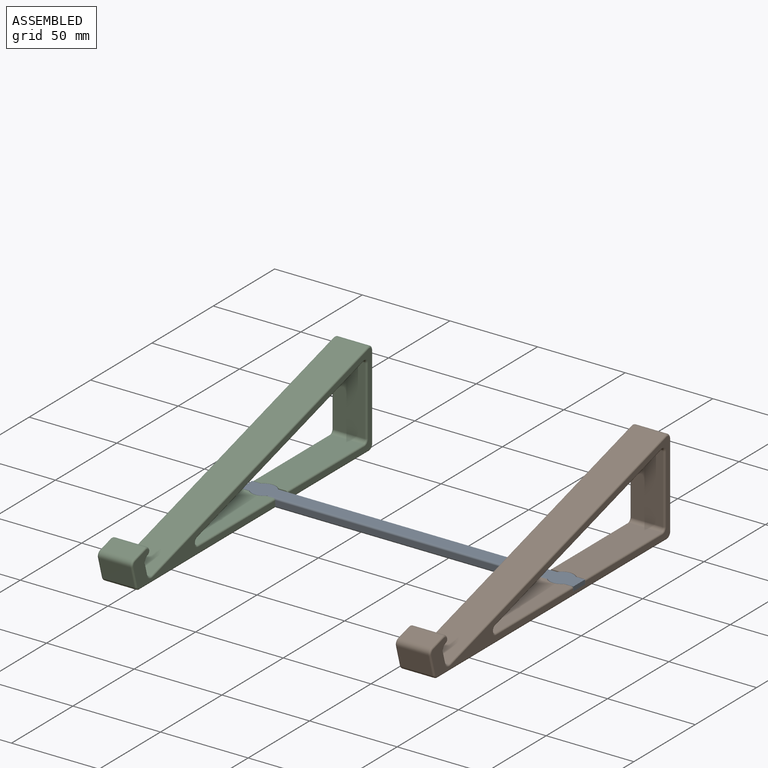
[diagram: assembled view]
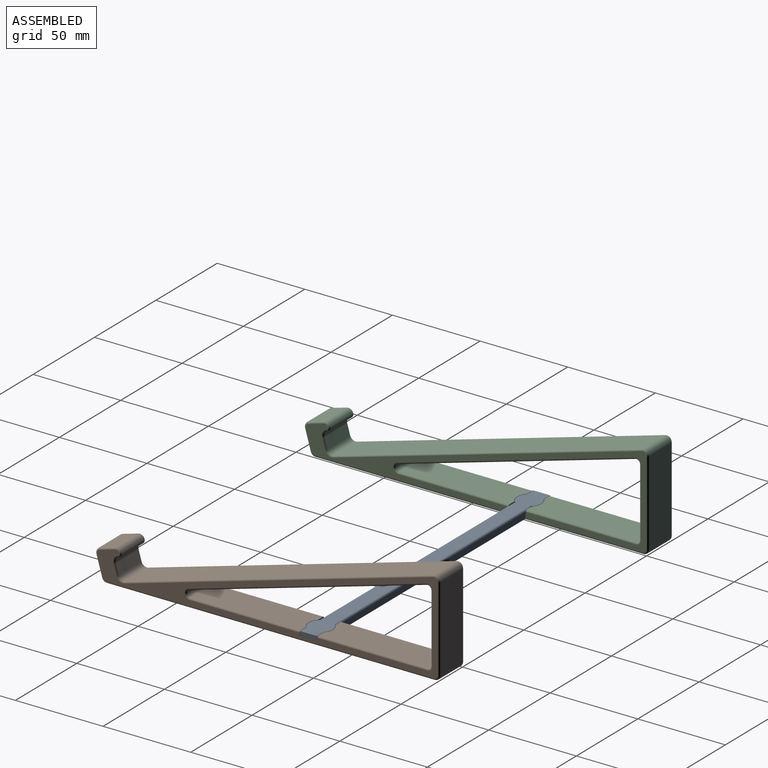
[diagram: assembled view, second angle]
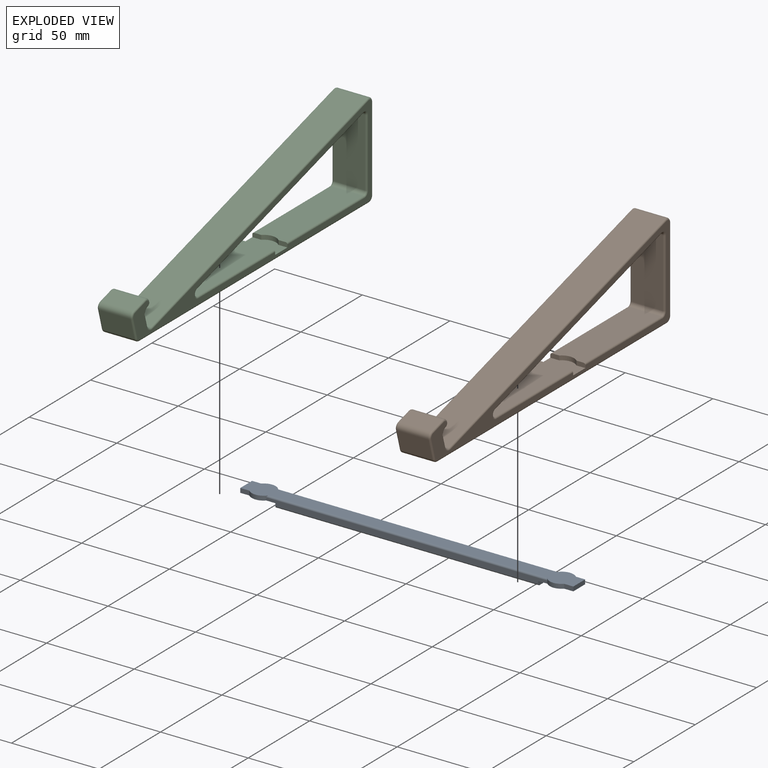
[diagram: exploded view]
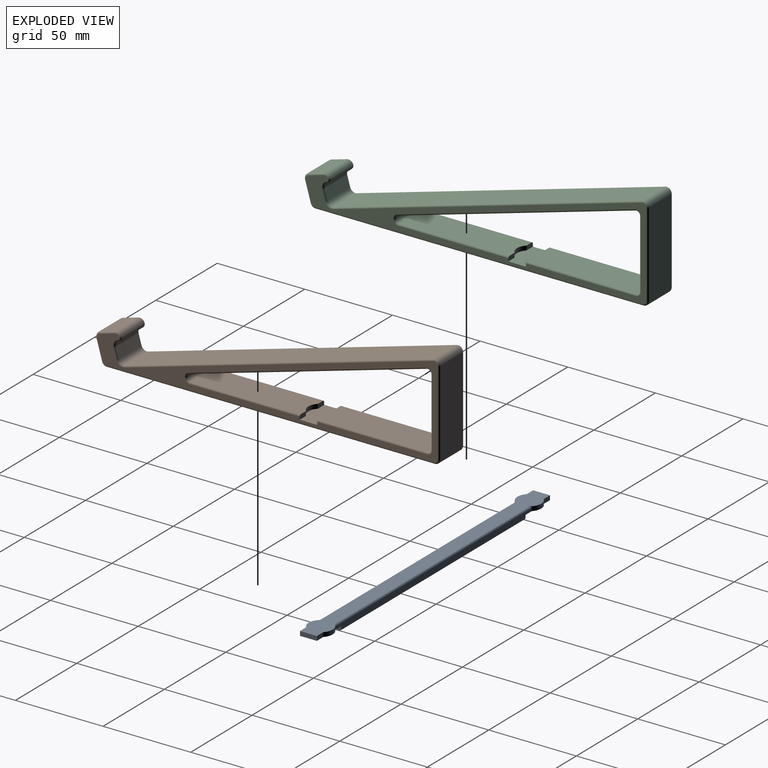
[diagram: exploded view, second angle]
ASSEMBLY  parts=3 mates=2
PART A: 22 faces, bbox 190x13.6x5 mm
  f0: plane 160.37x3mm, normal (0,1,0), area 465.6mm2, adj f1,f3,f6,f11,f16,f17,f19,f21
  f1: plane 9.6x2.5mm, normal (-1,0,0), area 23.6mm2, adj f0,f2,f4,f11,f20,f21
  f2: plane 160.37x3mm, normal (0,-1,0), area 465.6mm2, adj f1,f3,f10,f11,f12,f17,f18,f20
  f3: plane 9.6x2.5mm, normal (1,0,0), area 23.6mm2, adj f0,f2,f4,f17,f20,f21
  f4: plane 150x7.6mm, normal (0,0,1), area 1140mm2, adj f1,f3,f20,f21
  f5: plane 190x13.6mm, normal (0,0,-1), area 1558.1mm2, adj f6,f7,f8,f9,f10,f12,f13,f14
  f6: cylinder r=6.8mm len=10.46mm, axis (0,0,-1), area 27.1mm2, adj f0,f5,f7,f11,f19
  f7: plane 5.18x2.5mm, normal (0,1,0), area 13mm2, adj f5,f6,f8,f11
  f8: plane 9.6x2.5mm, normal (-1,0,0), area 24mm2, adj f5,f7,f9,f11
  f9: plane 5.18x2.5mm, normal (0,-1,0), area 13mm2, adj f5,f8,f10,f11
  f10: cylinder r=6.8mm len=10.46mm, axis (0,0,-1), area 27.1mm2, adj f2,f5,f9,f11,f18
  f11: plane 20x13.6mm, normal (0,0,1), area 218.6mm2, adj f0,f1,f2,f6,f7,f8,f9,f10
  f12: cylinder r=6.8mm len=10.46mm, axis (0,0,-1), area 27.1mm2, adj f2,f5,f13,f17,f18
  f13: plane 5.18x2.5mm, normal (0,-1,0), area 13mm2, adj f5,f12,f14,f17
  f14: plane 9.6x2.5mm, normal (1,0,0), area 24mm2, adj f5,f13,f15,f17
  f15: plane 5.18x2.5mm, normal (0,1,0), area 13mm2, adj f5,f14,f16,f17
  f16: cylinder r=6.8mm len=10.46mm, axis (0,0,-1), area 27.1mm2, adj f0,f5,f15,f17,f19
  f17: plane 20x13.6mm, normal (0,0,1), area 218.6mm2, adj f0,f2,f3,f12,f13,f14,f15,f16
  f18: cylinder r=1mm len=160.37mm, axis (-1,0,0), area 250.9mm2, adj f2,f5,f10,f12
  f19: cylinder r=1mm len=160.37mm, axis (1,0,0), area 250.9mm2, adj f0,f5,f6,f16
  f20: cylinder r=1mm len=150mm, axis (-1,0,0), area 235.6mm2, adj f1,f2,f3,f4
  f21: cylinder r=1mm len=150mm, axis (1,0,0), area 235.6mm2, adj f0,f1,f3,f4
PART B: 72 faces, bbox 196.7x54.6x20 mm
  f0: plane 62.72x18mm, normal (0,1,0), area 1115.5mm2, adj f18,f23,f27,f28,f64,f65
  f1: plane 194.23x52.15mm, normal (0,0,1), area 1389.9mm2, adj f23,f24,f29,f44,f45,f46,f47,f48
  f2: cylinder r=3mm len=18mm, axis (0,0,-1), area 84.8mm2, adj f3,f21,f40,f54
  f3: plane 18x5.77mm, normal (0.96,0.28,0), area 108mm2, adj f2,f4,f42,f52
  f4: cylinder r=3mm len=18mm, axis (0,0,-1), area 84.8mm2, adj f3,f5,f43,f50
  f5: cylinder r=2mm len=18mm, axis (0,0,-1), area 56.5mm2, adj f4,f6,f41,f48
  f6: cylinder r=3mm len=18mm, axis (0,0,-1), area 84.8mm2, adj f5,f7,f39,f46
  f7: plane 18x8.65mm, normal (-0.28,0.96,0), area 162mm2, adj f6,f8,f37,f44
  f8: cylinder r=3mm len=18mm, axis (0,0,-1), area 84.8mm2, adj f7,f9,f35,f45
  f9: plane 18x11.28mm, normal (-0.96,-0.28,0), area 211.3mm2, adj f8,f10,f33,f47
  f10: cylinder r=3mm len=18mm, axis (0,0,-1), area 69.7mm2, adj f9,f11,f31,f49
  f11: plane 186.99x18mm, normal (0,-1,0), area 3365.9mm2, adj f10,f12,f30,f51
  f12: cylinder r=3mm len=18mm, axis (0,0,-1), area 84.8mm2, adj f11,f13,f32,f53
  f13: plane 48.15x18mm, normal (1,0,0), area 866.6mm2, adj f12,f14,f34,f55
  f14: cylinder r=3mm len=18mm, axis (0,0,-1), area 99.9mm2, adj f13,f21,f36,f57
  f15: plane 38.84x18mm, normal (-1,0,0), area 699.1mm2, adj f16,f20,f60,f69
  f16: cylinder r=2mm len=18mm, axis (0,0,-1), area 56.5mm2, adj f15,f17,f59,f70
  f17: plane 62.72x18mm, normal (0,1,0), area 1115.5mm2, adj f16,f24,f25,f26,f58,f71
  f18: cylinder r=2mm len=18mm, axis (0,0,-1), area 103mm2, adj f0,f19,f63,f66
  f19: plane 135.44x38.84mm, normal (0.28,-0.96,0), area 2536.3mm2, adj f18,f20,f62,f67
  f20: cylinder r=2mm len=18mm, axis (0,0,-1), area 66.6mm2, adj f15,f19,f61,f68
  f21: plane 175.93x50.45mm, normal (-0.28,0.96,0), area 3294.3mm2, adj f2,f14,f38,f56
  f22: plane 194.23x52.15mm, normal (0,0,-1), area 1389.9mm2, adj f26,f27,f29,f30,f31,f32,f33,f34
  f23: plane 5.1x2.5mm, normal (1,0,0), area 12.5mm2, adj f0,f1,f28,f29,f65
  f24: plane 5.1x2.5mm, normal (-1,0,0), area 12.5mm2, adj f1,f17,f25,f29,f71
  f25: cylinder r=7mm len=9.8mm, axis (0,1,0), area 27.1mm2, adj f17,f24,f26,f29
  f26: plane 5.1x2.5mm, normal (-1,0,0), area 12.5mm2, adj f17,f22,f25,f29,f58
  f27: plane 5.1x2.5mm, normal (1,0,0), area 12.5mm2, adj f0,f22,f28,f29,f64
  f28: cylinder r=7mm len=9.8mm, axis (0,1,0), area 27.1mm2, adj f0,f23,f27,f29
  f29: plane 20x14mm, normal (0,1,0), area 227mm2, adj f1,f22,f23,f24,f25,f26,f27,f28
  f30: cylinder r=1mm len=186.99mm, axis (1,0,0), area 293.7mm2, adj f11,f22,f31,f32
  f31: torus R=2mm, axis (0,0,1), area 5.3mm2, adj f10,f22,f30,f33
  f32: torus R=2mm, axis (0,0,1), area 6.5mm2, adj f12,f22,f30,f34
  f33: cylinder r=1mm len=11.56mm, axis (0.28,-0.96,0), area 18.4mm2, adj f9,f22,f31,f35
  f34: cylinder r=1mm len=48.15mm, axis (0,1,0), area 75.6mm2, adj f13,f22,f32,f36
  f35: torus R=2mm, axis (0,0,1), area 6.5mm2, adj f8,f22,f33,f37
  f36: torus R=2mm, axis (0,0,1), area 7.7mm2, adj f14,f22,f34,f38
  f37: cylinder r=1mm len=8.93mm, axis (-0.96,-0.28,0), area 14.1mm2, adj f7,f22,f35,f39
  f38: cylinder r=1mm len=176.2mm, axis (-0.96,-0.28,0), area 287.5mm2, adj f21,f22,f36,f40
  f39: torus R=2mm, axis (0,0,1), area 6.5mm2, adj f6,f22,f37,f41
  f40: torus R=4mm, axis (0,0,1), area 8.3mm2, adj f2,f22,f38,f42
  f41: torus R=1mm, axis (0,0,1), area 4mm2, adj f5,f22,f39,f43
  f42: cylinder r=1mm len=6.04mm, axis (-0.28,0.96,0), area 9.4mm2, adj f3,f22,f40,f43
  f43: torus R=4mm, axis (0,0,1), area 8.3mm2, adj f4,f22,f41,f42
  f44: cylinder r=1mm len=8.93mm, axis (0.96,0.28,0), area 14.1mm2, adj f1,f7,f45,f46
  f45: torus R=2mm, axis (0,0,1), area 6.5mm2, adj f1,f8,f44,f47
  f46: torus R=2mm, axis (0,0,1), area 6.5mm2, adj f1,f6,f44,f48
  f47: cylinder r=1mm len=11.56mm, axis (-0.28,0.96,0), area 18.4mm2, adj f1,f9,f45,f49
  f48: torus R=1mm, axis (0,0,1), area 4mm2, adj f1,f5,f46,f50
  f49: torus R=2mm, axis (0,0,1), area 5.3mm2, adj f1,f10,f47,f51
  f50: torus R=4mm, axis (0,0,1), area 8.3mm2, adj f1,f4,f48,f52
  f51: cylinder r=1mm len=186.99mm, axis (-1,0,0), area 293.7mm2, adj f1,f11,f49,f53
  f52: cylinder r=1mm len=6.04mm, axis (0.28,-0.96,0), area 9.4mm2, adj f1,f3,f50,f54
  f53: torus R=2mm, axis (0,0,1), area 6.5mm2, adj f1,f12,f51,f55
  f54: torus R=4mm, axis (0,0,1), area 8.3mm2, adj f1,f2,f52,f56
  f55: cylinder r=1mm len=48.15mm, axis (0,-1,0), area 75.6mm2, adj f1,f13,f53,f57
  f56: cylinder r=1mm len=176.2mm, axis (0.96,0.28,0), area 287.5mm2, adj f1,f21,f54,f57
  f57: torus R=2mm, axis (0,0,1), area 7.7mm2, adj f1,f14,f55,f56
  f58: cylinder r=1mm len=62.72mm, axis (-1,0,0), area 98.5mm2, adj f17,f22,f26,f59
  f59: torus R=3mm, axis (0,0,1), area 5.8mm2, adj f16,f22,f58,f60
  f60: cylinder r=1mm len=38.84mm, axis (0,-1,0), area 61mm2, adj f15,f22,f59,f61
  f61: torus R=3mm, axis (0,0,1), area 6.9mm2, adj f20,f22,f60,f62
  f62: cylinder r=1mm len=135.72mm, axis (0.96,0.28,0), area 221.3mm2, adj f19,f22,f61,f63
  f63: torus R=3mm, axis (0,0,1), area 10.6mm2, adj f18,f22,f62,f64
  f64: cylinder r=1mm len=62.72mm, axis (-1,0,0), area 98.5mm2, adj f0,f22,f27,f63
  f65: cylinder r=1mm len=62.72mm, axis (1,0,0), area 98.5mm2, adj f0,f1,f23,f66
  f66: torus R=3mm, axis (0,0,1), area 10.6mm2, adj f1,f18,f65,f67
  f67: cylinder r=1mm len=135.72mm, axis (-0.96,-0.28,0), area 221.3mm2, adj f1,f19,f66,f68
  f68: torus R=3mm, axis (0,0,1), area 6.9mm2, adj f1,f20,f67,f69
  f69: cylinder r=1mm len=38.84mm, axis (0,1,0), area 61mm2, adj f1,f15,f68,f70
  f70: torus R=3mm, axis (0,0,1), area 5.8mm2, adj f1,f16,f69,f71
  f71: cylinder r=1mm len=62.72mm, axis (1,0,0), area 98.5mm2, adj f1,f17,f24,f70
PART C: same geometry as B
PLACE A rot(axis=(1,0,0),180deg) t=(51.57,168.98,39.63)mm
PLACE B rot(axis=(0.58,0.58,0.58),120deg) t=(157.08,-86.44,34.63)mm
PLACE C rot(axis=(0.58,0.58,0.58),120deg) t=(-12.92,-86.44,34.63)mm
MATE fastened B.f25 <-> A.f12  axis (0,0,1) through (167.08,31.09,37.13)mm
MATE fastened C.f25 <-> A.f6  axis (0,0,1) through (-2.92,31.09,37.13)mm
